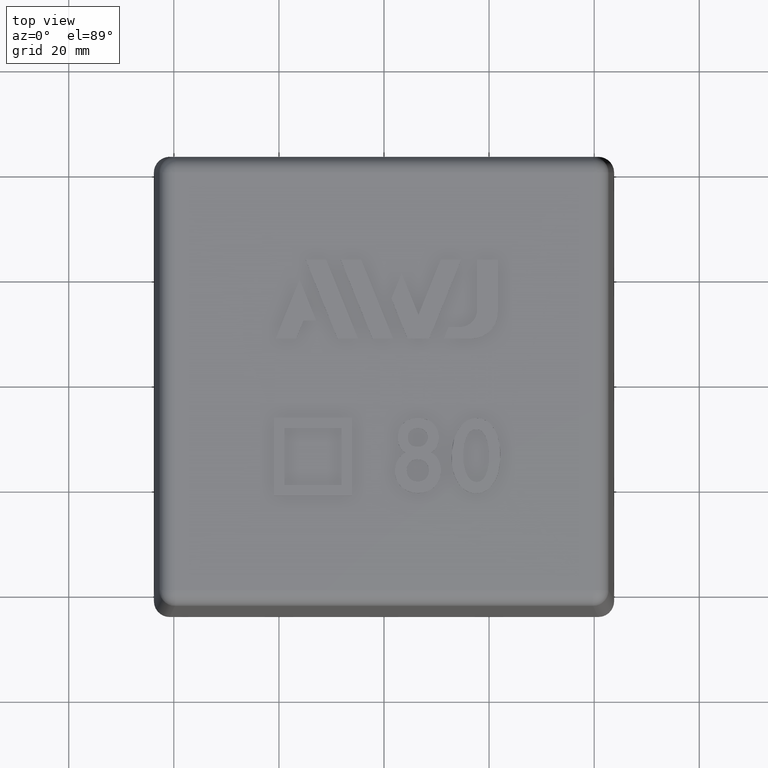
[diagram: clean part render]
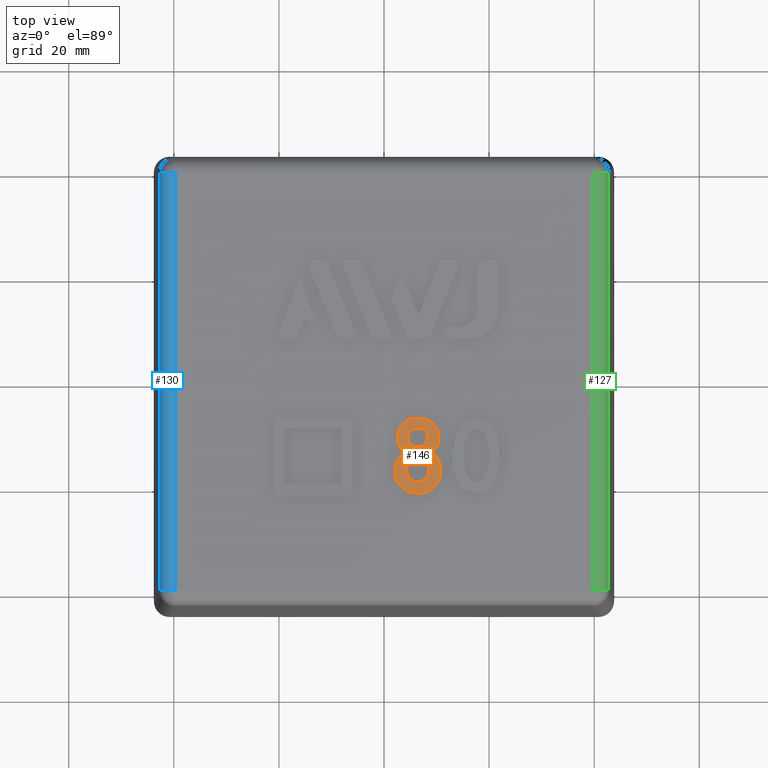
[diagram: same view with three faces highlighted in distinct colors, each labeled with its STEP entity id]
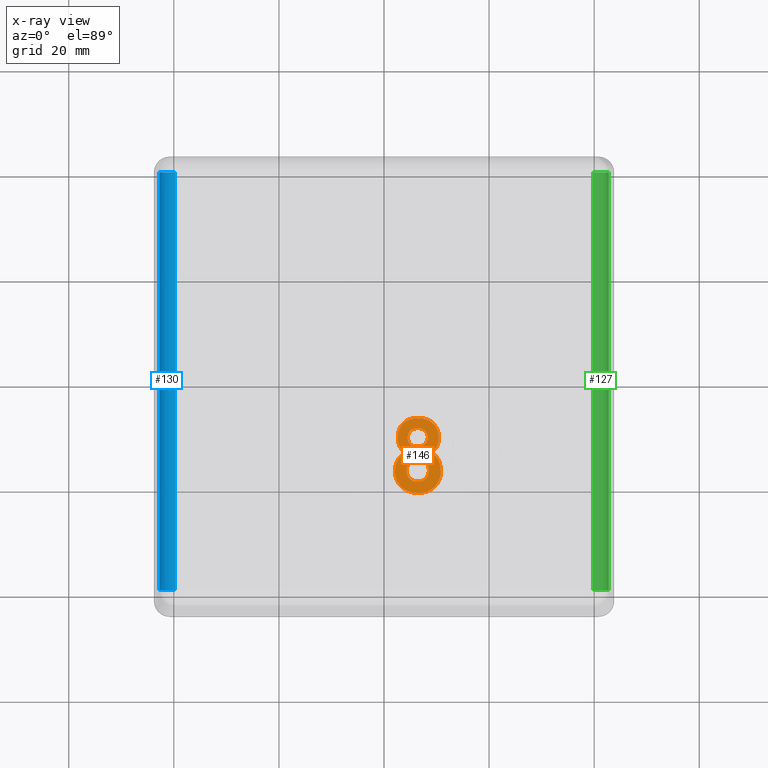
[diagram: x-ray of the same camera — body ghosted, the three highlighted faces saturated]
A machine part, top view with three faces highlighted in distinct colors.
The next image is the same camera in x-ray (body ghosted, the three faces saturated) — at least one of them is partly hidden behind the body in this view.
Their STEP definitions:

[orange] entity #146 — the highlighted planar face has unit normal (0, 0, 1).
#146 = ADVANCED_FACE( '', ( #308, #309, #310 ), #311, .T. );
#308 = FACE_BOUND( '', #486, .T. );
#309 = FACE_OUTER_BOUND( '', #487, .T. );
#310 = FACE_BOUND( '', #488, .T. );
#311 = PLANE( '', #489 );
#486 = EDGE_LOOP( '', ( #1105 ) );
#487 = EDGE_LOOP( '', ( #1106, #1107, #1108 ) );
#488 = EDGE_LOOP( '', ( #1109 ) );
#489 = AXIS2_PLACEMENT_3D( '', #1110, #1111, #1112 );
#1105 = ORIENTED_EDGE( '', *, *, #1225, .F. );
#1106 = ORIENTED_EDGE( '', *, *, #1229, .F. );
#1107 = ORIENTED_EDGE( '', *, *, #1223, .F. );
#1108 = ORIENTED_EDGE( '', *, *, #1221, .F. );
#1109 = ORIENTED_EDGE( '', *, *, #1227, .F. );
#1110 = CARTESIAN_POINT( '', ( 3.10134875252592, -14.3611459917123, 63.5000000000000 ) );
#1111 = DIRECTION( '', ( 0.000000000000000, 0.000000000000000, 1.00000000000000 ) );
#1112 = DIRECTION( '', ( 0.000000000000000, -1.00000000000000, 0.000000000000000 ) );
#1221 = EDGE_CURVE( '', #1437, #1439, #1440, .T. );
#1223 = EDGE_CURVE( '', #1439, #1442, #1443, .T. );
#1225 = EDGE_CURVE( '', #1445, #1445, #1446, .T. );
#1227 = EDGE_CURVE( '', #1449, #1449, #1450, .T. );
#1229 = EDGE_CURVE( '', #1442, #1437, #1453, .T. );
#1437 = VERTEX_POINT( '', #1814 );
#1439 = VERTEX_POINT( '', #1817 );
#1440 = B_SPLINE_CURVE_WITH_KNOTS( '', 2, ( #1818, #1819, #1820, #1821, #1822, #1823, #1824, #1825, #1826, #1827, #1828, #1829, #1830, #1831, #1832, #1833, #1834 ), .UNSPECIFIED., .F., .F., ( 3, 2, 2, 2, 2, 2, 2, 2, 3 ), ( 1.00000000000000, 2.00000000000000, 3.00000000000000, 4.00000000000000, 5.00000000000000, 6.00000000000000, 7.00000000000000, 8.00000000000000, 9.00000000000000 ), .UNSPECIFIED. );
#1442 = VERTEX_POINT( '', #1837 );
#1443 = B_SPLINE_CURVE_WITH_KNOTS( '', 2, ( #1838, #1839, #1840, #1841, #1842, #1843, #1844, #1845, #1846, #1847, #1848, #1849, #1850, #1851, #1852 ), .UNSPECIFIED., .F., .F., ( 3, 2, 2, 2, 2, 2, 2, 3 ), ( 9.00000000000000, 10.0000000000000, 11.0000000000000, 12.0000000000000, 13.0000000000000, 14.0000000000000, 15.0000000000000, 16.0000000000000 ), .UNSPECIFIED. );
#1445 = VERTEX_POINT( '', #1855 );
#1446 = B_SPLINE_CURVE_WITH_KNOTS( '', 2, ( #1856, #1857, #1858, #1859, #1860, #1861, #1862, #1863, #1864, #1865, #1866, #1867, #1868, #1869, #1870, #1871, #1872 ), .UNSPECIFIED., .T., .F., ( 3, 2, 2, 2, 2, 2, 2, 2, 3 ), ( 0.000000000000000, 1.00000000000000, 2.00000000000000, 3.00000000000000, 4.00000000000000, 5.00000000000000, 6.00000000000000, 7.00000000000000, 8.00000000000000 ), .UNSPECIFIED. );
#1449 = VERTEX_POINT( '', #1891 );
#1450 = B_SPLINE_CURVE_WITH_KNOTS( '', 2, ( #1892, #1893, #1894, #1895, #1896, #1897, #1898, #1899, #1900, #1901, #1902, #1903, #1904, #1905, #1906, #1907, #1908 ), .UNSPECIFIED., .T., .F., ( 3, 2, 2, 2, 2, 2, 2, 2, 3 ), ( 0.000000000000000, 1.00000000000000, 2.00000000000000, 3.00000000000000, 4.00000000000000, 5.00000000000000, 6.00000000000000, 7.00000000000000, 8.00000000000000 ), .UNSPECIFIED. );
#1453 = B_SPLINE_CURVE_WITH_KNOTS( '', 2, ( #1927, #1928, #1929 ), .UNSPECIFIED., .F., .F., ( 3, 3 ), ( 0.000000000000000, 1.00000000000000 ), .UNSPECIFIED. );
#1814 = CARTESIAN_POINT( '', ( 4.10403778409087, -13.6781000000000, 63.5000000000000 ) );
#1817 = CARTESIAN_POINT( '', ( 8.94494687499996, -13.6099181818182, 63.5000000000000 ) );
#1818 = CARTESIAN_POINT( '', ( 4.10403778409087, -13.6781000000000, 63.5000000000000 ) );
#1819 = CARTESIAN_POINT( '', ( 3.21767414772723, -13.1326454545455, 63.5000000000000 ) );
#1820 = CARTESIAN_POINT( '', ( 2.82005999717190, -12.1054755656109, 63.5000000000000 ) );
#1821 = CARTESIAN_POINT( '', ( 2.39949232954541, -11.0190090909091, 63.5000000000000 ) );
#1822 = CARTESIAN_POINT( '', ( 2.77600809349044, -9.59661620489456, 63.5000000000000 ) );
#1823 = CARTESIAN_POINT( '', ( 3.01312869318177, -8.70082727272729, 63.5000000000000 ) );
#1824 = CARTESIAN_POINT( '', ( 3.69494687499996, -8.01900909090911, 63.5000000000000 ) );
#1825 = CARTESIAN_POINT( '', ( 4.64949232954541, -7.06446363636366, 63.5000000000000 ) );
#1826 = CARTESIAN_POINT( '', ( 6.49040142045450, -7.06446363636366, 63.5000000000000 ) );
#1827 = CARTESIAN_POINT( '', ( 8.33131051136359, -7.06446363636366, 63.5000000000000 ) );
#1828 = CARTESIAN_POINT( '', ( 9.28585596590905, -8.01900909090911, 63.5000000000000 ) );
#1829 = CARTESIAN_POINT( '', ( 10.1722196022727, -8.90537272727275, 63.5000000000000 ) );
#1830 = CARTESIAN_POINT( '', ( 10.3827650568181, -10.0633727272727, 63.5000000000000 ) );
#1831 = CARTESIAN_POINT( '', ( 10.5813105113636, -11.1553727272727, 63.5000000000000 ) );
#1832 = CARTESIAN_POINT( '', ( 10.1785480804244, -12.1805861878453, 63.5000000000000 ) );
#1833 = CARTESIAN_POINT( '', ( 9.83131051136359, -13.0644636363637, 63.5000000000000 ) );
#1834 = CARTESIAN_POINT( '', ( 8.94494687499996, -13.6099181818182, 63.5000000000000 ) );
#1837 = CARTESIAN_POINT( '', ( 2.41146347601290, -15.4557385123037, 63.5000000000000 ) );
#1838 = CARTESIAN_POINT( '', ( 8.94494687499996, -13.6099181818182, 63.5000000000000 ) );
#1839 = CARTESIAN_POINT( '', ( 9.96767414772723, -14.0871909090909, 63.5000000000000 ) );
#1840 = CARTESIAN_POINT( '', ( 10.4719844925548, -15.2639150470220, 63.5000000000000 ) );
#1841 = CARTESIAN_POINT( '', ( 10.9904014204545, -16.4735545454546, 63.5000000000000 ) );
#1842 = CARTESIAN_POINT( '', ( 10.7508436808968, -17.9109009828010, 63.5000000000000 ) );
#1843 = CARTESIAN_POINT( '', ( 10.5131286931818, -19.3371909090909, 63.5000000000000 ) );
#1844 = CARTESIAN_POINT( '', ( 9.50900001383820, -20.2441458452722, 63.5000000000000 ) );
#1845 = CARTESIAN_POINT( '', ( 8.39949232954541, -21.2462818181818, 63.5000000000000 ) );
#1846 = CARTESIAN_POINT( '', ( 6.76292726978981, -21.3092266281724, 63.5000000000000 ) );
#1847 = CARTESIAN_POINT( '', ( 4.85403778409086, -21.3826454545455, 63.5000000000000 ) );
#1848 = CARTESIAN_POINT( '', ( 3.63653115279113, -20.4158019532192, 63.5000000000000 ) );
#1849 = CARTESIAN_POINT( '', ( 2.53585596590905, -19.5417363636364, 63.5000000000000 ) );
#1850 = CARTESIAN_POINT( '', ( 2.21098965574862, -18.2422711229947, 63.5000000000000 ) );
#1851 = CARTESIAN_POINT( '', ( 1.85403778409086, -16.8144636363637, 63.5000000000000 ) );
#1852 = CARTESIAN_POINT( '', ( 2.41146347601290, -15.4557385123037, 63.5000000000000 ) );
#1855 = CARTESIAN_POINT( '', ( 4.92221960227269, -18.5871909090909, 63.5000000000000 ) );
#1856 = CARTESIAN_POINT( '', ( 4.92221960227269, -18.5871909090909, 63.5000000000000 ) );
#1857 = CARTESIAN_POINT( '', ( 5.46767414772723, -19.1326454545455, 63.5000000000000 ) );
#1858 = CARTESIAN_POINT( '', ( 6.42221960227268, -19.1326454545455, 63.5000000000000 ) );
#1859 = CARTESIAN_POINT( '', ( 7.37676505681814, -19.1326454545455, 63.5000000000000 ) );
#1860 = CARTESIAN_POINT( '', ( 7.92221960227268, -18.5871909090909, 63.5000000000000 ) );
#1861 = CARTESIAN_POINT( '', ( 8.53585596590904, -17.9735545454546, 63.5000000000000 ) );
#1862 = CARTESIAN_POINT( '', ( 8.53585596590904, -17.0190090909091, 63.5000000000000 ) );
#1863 = CARTESIAN_POINT( '', ( 8.53585596590904, -16.0644636363637, 63.5000000000000 ) );
#1864 = CARTESIAN_POINT( '', ( 7.92221960227268, -15.4508272727273, 63.5000000000000 ) );
#1865 = CARTESIAN_POINT( '', ( 7.37676505681814, -14.9053727272727, 63.5000000000000 ) );
#1866 = CARTESIAN_POINT( '', ( 6.42221960227268, -14.9053727272727, 63.5000000000000 ) );
#1867 = CARTESIAN_POINT( '', ( 5.46767414772723, -14.9053727272727, 63.5000000000000 ) );
#1868 = CARTESIAN_POINT( '', ( 4.92221960227269, -15.4508272727273, 63.5000000000000 ) );
#1869 = CARTESIAN_POINT( '', ( 4.30858323863632, -16.0644636363637, 63.5000000000000 ) );
#1870 = CARTESIAN_POINT( '', ( 4.30858323863632, -17.0190090909091, 63.5000000000000 ) );
#1871 = CARTESIAN_POINT( '', ( 4.30858323863632, -17.9735545454546, 63.5000000000000 ) );
#1872 = CARTESIAN_POINT( '', ( 4.92221960227269, -18.5871909090909, 63.5000000000000 ) );
#1891 = CARTESIAN_POINT( '', ( 4.99040142045450, -12.0417363636364, 63.5000000000000 ) );
#1892 = CARTESIAN_POINT( '', ( 4.99040142045450, -12.0417363636364, 63.5000000000000 ) );
#1893 = CARTESIAN_POINT( '', ( 5.46767414772723, -12.5190090909091, 63.5000000000000 ) );
#1894 = CARTESIAN_POINT( '', ( 6.42221960227268, -12.5190090909091, 63.5000000000000 ) );
#1895 = CARTESIAN_POINT( '', ( 7.30858323863632, -12.5190090909091, 63.5000000000000 ) );
#1896 = CARTESIAN_POINT( '', ( 7.78585596590905, -12.0417363636364, 63.5000000000000 ) );
#1897 = CARTESIAN_POINT( '', ( 8.33131051136359, -11.4962818181818, 63.5000000000000 ) );
#1898 = CARTESIAN_POINT( '', ( 8.33131051136359, -10.7462818181818, 63.5000000000000 ) );
#1899 = CARTESIAN_POINT( '', ( 8.33131051136359, -9.99628181818184, 63.5000000000000 ) );
#1900 = CARTESIAN_POINT( '', ( 7.78585596590905, -9.45082727272729, 63.5000000000000 ) );
#1901 = CARTESIAN_POINT( '', ( 7.30858323863632, -8.97355454545457, 63.5000000000000 ) );
#1902 = CARTESIAN_POINT( '', ( 6.42221960227268, -8.97355454545457, 63.5000000000000 ) );
#1903 = CARTESIAN_POINT( '', ( 5.53585596590905, -8.97355454545457, 63.5000000000000 ) );
#1904 = CARTESIAN_POINT( '', ( 5.05858323863632, -9.45082727272729, 63.5000000000000 ) );
#1905 = CARTESIAN_POINT( '', ( 4.51312869318177, -9.99628181818184, 63.5000000000000 ) );
#1906 = CARTESIAN_POINT( '', ( 4.51312869318177, -10.7462818181818, 63.5000000000000 ) );
#1907 = CARTESIAN_POINT( '', ( 4.51312869318177, -11.5644636363637, 63.5000000000000 ) );
#1908 = CARTESIAN_POINT( '', ( 4.99040142045450, -12.0417363636364, 63.5000000000000 ) );
#1927 = CARTESIAN_POINT( '', ( 2.41146347601290, -15.4557385123037, 63.5000000000000 ) );
#1928 = CARTESIAN_POINT( '', ( 2.94494687499996, -14.1553727272727, 63.5000000000000 ) );
#1929 = CARTESIAN_POINT( '', ( 4.10403778409087, -13.6781000000000, 63.5000000000000 ) );

[blue] entity #130 — the highlighted cylindrical surface (edge-blend (fillet) strip) has radius 3 mm, axis along (0, 1, 0).
#130 = ADVANCED_FACE( '', ( #275 ), #276, .T. );
#275 = FACE_OUTER_BOUND( '', #453, .T. );
#276 = CYLINDRICAL_SURFACE( '', #454, 3.00000000000000 );
#453 = EDGE_LOOP( '', ( #992, #993, #994, #995 ) );
#454 = AXIS2_PLACEMENT_3D( '', #996, #997, #998 );
#992 = ORIENTED_EDGE( '', *, *, #1317, .T. );
#993 = ORIENTED_EDGE( '', *, *, #1182, .F. );
#994 = ORIENTED_EDGE( '', *, *, #1314, .F. );
#995 = ORIENTED_EDGE( '', *, *, #1217, .F. );
#996 = CARTESIAN_POINT( '', ( -39.7522391201752, -43.8000000000000, 60.0000000000000 ) );
#997 = DIRECTION( '', ( 0.000000000000000, 1.00000000000000, 0.000000000000000 ) );
#998 = DIRECTION( '', ( 0.000000000000000, 0.000000000000000, -1.00000000000000 ) );
#1182 = EDGE_CURVE( '', #1360, #1355, #1362, .F. );
#1217 = EDGE_CURVE( '', #1430, #1432, #1433, .F. );
#1314 = EDGE_CURVE( '', #1432, #1360, #1582, .T. );
#1317 = EDGE_CURVE( '', #1430, #1355, #1586, .T. );
#1355 = VERTEX_POINT( '', #1674 );
#1360 = VERTEX_POINT( '', #1681 );
#1362 = LINE( '', #1684, #1685 );
#1430 = VERTEX_POINT( '', #1803 );
#1432 = VERTEX_POINT( '', #1806 );
#1433 = LINE( '', #1807, #1808 );
#1582 = CIRCLE( '', #2146, 3.00000000000000 );
#1586 = CIRCLE( '', #2150, 3.00000000000000 );
#1674 = CARTESIAN_POINT( '', ( -39.7522391201752, -39.7522391201752, 63.0000000000000 ) );
#1681 = CARTESIAN_POINT( '', ( -39.7522391201752, 39.7522391201752, 63.0000000000000 ) );
#1684 = CARTESIAN_POINT( '', ( -39.7522391201752, -39.7007878240531, 63.0000000000000 ) );
#1685 = VECTOR( '', #2273, 1000.00000000000 );
#1803 = CARTESIAN_POINT( '', ( -42.7517822056444, -39.7522391201752, 60.0523572193119 ) );
#1806 = CARTESIAN_POINT( '', ( -42.7517822056444, 39.7522391201752, 60.0523572193119 ) );
#1807 = CARTESIAN_POINT( '', ( -42.7517822056444, 39.7007878240531, 60.0523572193118 ) );
#1808 = VECTOR( '', #2307, 1000.00000000000 );
#2146 = AXIS2_PLACEMENT_3D( '', #2401, #2402, #2403 );
#2150 = AXIS2_PLACEMENT_3D( '', #2410, #2411, #2412 );
#2273 = DIRECTION( '', ( 0.000000000000000, 1.00000000000000, 0.000000000000000 ) );
#2307 = DIRECTION( '', ( 0.000000000000000, -1.00000000000000, 0.000000000000000 ) );
#2401 = CARTESIAN_POINT( '', ( -39.7522391201752, 39.7522391201752, 60.0000000000000 ) );
#2402 = DIRECTION( '', ( 0.000000000000000, 1.00000000000000, 0.000000000000000 ) );
#2403 = DIRECTION( '', ( 0.000000000000000, 0.000000000000000, 1.00000000000000 ) );
#2410 = CARTESIAN_POINT( '', ( -39.7522391201752, -39.7522391201752, 60.0000000000000 ) );
#2411 = DIRECTION( '', ( 0.000000000000000, 1.00000000000000, 0.000000000000000 ) );
#2412 = DIRECTION( '', ( 0.000000000000000, 0.000000000000000, 1.00000000000000 ) );

[green] entity #127 — the highlighted cylindrical surface (edge-blend (fillet) strip) has radius 3 mm, axis along (0, -1, 0).
#127 = ADVANCED_FACE( '', ( #269 ), #270, .T. );
#269 = FACE_OUTER_BOUND( '', #447, .T. );
#270 = CYLINDRICAL_SURFACE( '', #448, 3.00000000000000 );
#447 = EDGE_LOOP( '', ( #973, #974, #975, #976 ) );
#448 = AXIS2_PLACEMENT_3D( '', #977, #978, #979 );
#973 = ORIENTED_EDGE( '', *, *, #1311, .T. );
#974 = ORIENTED_EDGE( '', *, *, #1312, .F. );
#975 = ORIENTED_EDGE( '', *, *, #1306, .F. );
#976 = ORIENTED_EDGE( '', *, *, #1180, .F. );
#977 = CARTESIAN_POINT( '', ( 39.7522391201752, -43.8000000000000, 60.0000000000000 ) );
#978 = DIRECTION( '', ( 0.000000000000000, -1.00000000000000, 0.000000000000000 ) );
#979 = DIRECTION( '', ( 0.000000000000000, 0.000000000000000, 1.00000000000000 ) );
#1180 = EDGE_CURVE( '', #1356, #1358, #1359, .F. );
#1306 = EDGE_CURVE( '', #1358, #1570, #1571, .T. );
#1311 = EDGE_CURVE( '', #1356, #1578, #1579, .T. );
#1312 = EDGE_CURVE( '', #1570, #1578, #1580, .F. );
#1356 = VERTEX_POINT( '', #1675 );
#1358 = VERTEX_POINT( '', #1678 );
#1359 = LINE( '', #1679, #1680 );
#1570 = VERTEX_POINT( '', #2132 );
#1571 = CIRCLE( '', #2133, 3.00000000000000 );
#1578 = VERTEX_POINT( '', #2141 );
#1579 = CIRCLE( '', #2142, 3.00000000000000 );
#1580 = LINE( '', #2143, #2144 );
#1675 = CARTESIAN_POINT( '', ( 39.7522391201752, -39.7522391201752, 63.0000000000000 ) );
#1678 = CARTESIAN_POINT( '', ( 39.7522391201752, 39.7522391201752, 63.0000000000000 ) );
#1679 = CARTESIAN_POINT( '', ( 39.7522391201752, 39.7007878240531, 63.0000000000000 ) );
#1680 = VECTOR( '', #2271, 1000.00000000000 );
#2132 = CARTESIAN_POINT( '', ( 42.7517822056444, 39.7522391201752, 60.0523572193119 ) );
#2133 = AXIS2_PLACEMENT_3D( '', #2381, #2382, #2383 );
#2141 = CARTESIAN_POINT( '', ( 42.7517822056444, -39.7522391201752, 60.0523572193119 ) );
#2142 = AXIS2_PLACEMENT_3D( '', #2394, #2395, #2396 );
#2143 = CARTESIAN_POINT( '', ( 42.7517822056444, -39.7007878240531, 60.0523572193118 ) );
#2144 = VECTOR( '', #2397, 1000.00000000000 );
#2271 = DIRECTION( '', ( 0.000000000000000, -1.00000000000000, 0.000000000000000 ) );
#2381 = CARTESIAN_POINT( '', ( 39.7522391201752, 39.7522391201752, 60.0000000000000 ) );
#2382 = DIRECTION( '', ( 0.000000000000000, 1.00000000000000, 0.000000000000000 ) );
#2383 = DIRECTION( '', ( 0.000000000000000, 0.000000000000000, 1.00000000000000 ) );
#2394 = CARTESIAN_POINT( '', ( 39.7522391201752, -39.7522391201752, 60.0000000000000 ) );
#2395 = DIRECTION( '', ( 0.000000000000000, 1.00000000000000, 0.000000000000000 ) );
#2396 = DIRECTION( '', ( 0.000000000000000, 0.000000000000000, 1.00000000000000 ) );
#2397 = DIRECTION( '', ( 0.000000000000000, 1.00000000000000, 0.000000000000000 ) );